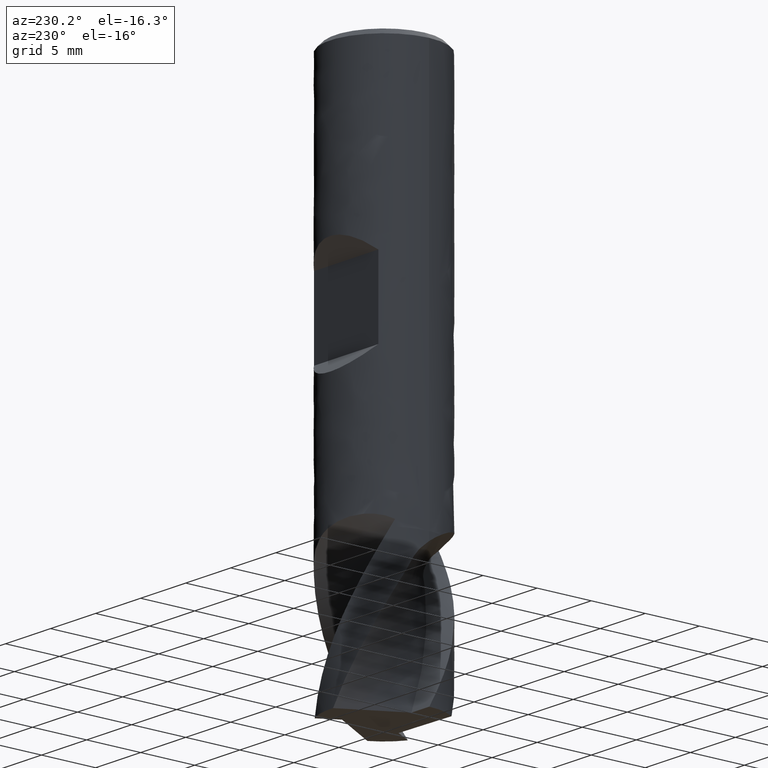
[diagram: clean part render]
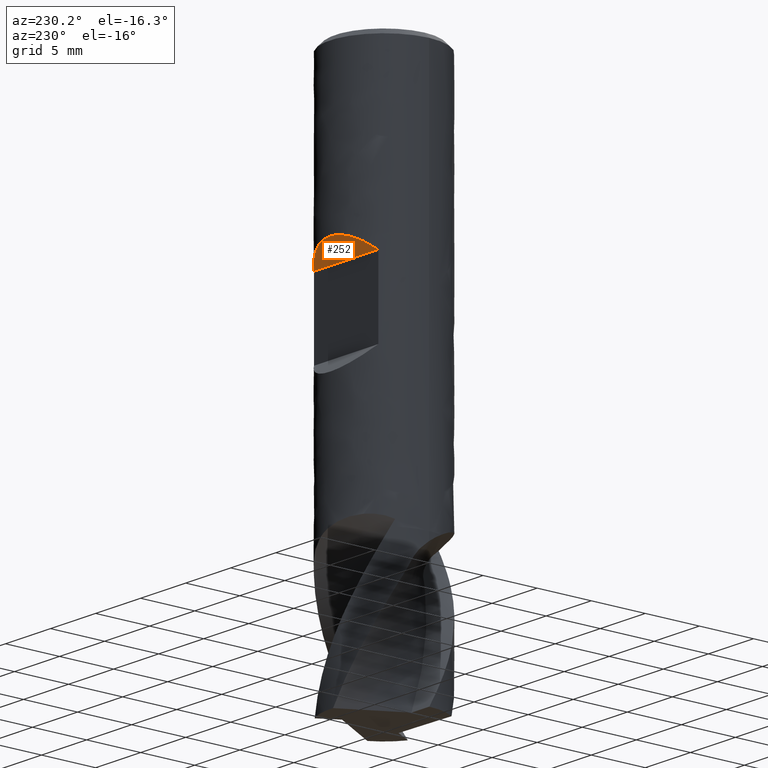
[diagram: same view with one face highlighted and labeled with its STEP entity id]
A machine part, auxiliary view. The second image highlights one B-rep face of the part: STEP entity #252.
In plain terms, the highlighted planar face has unit normal (0, 0.7133, -0.7009).
Its self-contained STEP definition (entity closure, byte-faithful):
#129 = VERTEX_POINT('', #130);
#130 = CARTESIAN_POINT('', (3.57071421427142, 3.5, -16.5));
#147 = VERTEX_POINT('', #148);
#148 = CARTESIAN_POINT('', (-3.57071421427142, 3.5, -16.5));
#154 = EDGE_CURVE('', #129, #147, #155, .T.);
#155 = LINE('', #156, #157);
#156 = CARTESIAN_POINT('', (3.57071421427142, 3.5, -16.5));
#157 = VECTOR('', #158, 7.14142842854284);
#158 = DIRECTION('', (-7.14142842854284, 4.44089209850063E-16, 0.));
#252 = ADVANCED_FACE('', (#253), #341, .T.);
#253 = FACE_OUTER_BOUND('', #254, .T.);
#254 = EDGE_LOOP('', (#255, #340));
#255 = ORIENTED_EDGE('', *, *, #256, .T.);
#256 = EDGE_CURVE('', #147, #129, #257, .T.);
#257 = B_SPLINE_CURVE_WITH_KNOTS('', 3, (#258, #259, #260, #261, #262, #263, #264, #265, #266, #267, #268, #269, #270, #271, #272, #273, #274, #275, #276, #277, #278, #279, #280, #281, #282, #283, #284, #285, #286, #287, #288, #289, #290, #291, #292, #293, #294, #295, #296, #297, #298, #299, #300, #301, #302, #303, #304, #305, #306, #307, #308, #309, #310, #311, #312, #313, #314, #315, #316, #317, #318, #319, #320, #321, #322, #323, #324, #325, #326, #327, #328, #329, #330, #331, #332, #333, #334, #335, #336, #337, #338, #339), .UNSPECIFIED., .F., .U., (4, 3, 3, 3, 3, 3, 3, 3, 3, 3, 3, 3, 3, 3, 3, 3, 3, 3, 3, 3, 3, 3, 3, 3, 3, 3, 3, 4), (0., 0.0341138844018456, 0.477744785271092, 0.921646138215224, 1.36587692968725, 1.66193288302491, 1.95811394690937, 2.25443514488297, 2.55091138328178, 2.84755630975292, 3.14438084834244, 3.44139155508659, 3.73858907509581, 4.03596708411747, 4.33180862682757, 4.62765016953766, 4.92502817855932, 5.22222569856855, 5.51923640531269, 5.81606094390221, 6.11270587037335, 6.40918210877216, 6.70550330674576, 7.00168437063023, 7.29774032396788, 7.74197111543991, 8.18587246838404, 8.66361725365513), .UNSPECIFIED.);
#258 = CARTESIAN_POINT('', (-3.57071421427142, 3.5, -16.5));
#259 = CARTESIAN_POINT('', (-3.56427504914016, 3.50656926241778, -16.4933150699973));
#260 = CARTESIAN_POINT('', (-3.55781171392695, 3.51312691832153, -16.4866419508691));
#261 = CARTESIAN_POINT('', (-3.55132420209363, 3.51967277053197, -16.4799808432664));
#262 = CARTESIAN_POINT('', (-3.46695794567111, 3.60479770907222, -16.3933570764815));
#263 = CARTESIAN_POINT('', (-3.37844247985145, 3.68798545467209, -16.3087046115544));
#264 = CARTESIAN_POINT('', (-3.28578814351442, 3.76876588234669, -16.2265018511453));
#265 = CARTESIAN_POINT('', (-3.19307732202845, 3.84959555644266, -16.1442489772137));
#266 = CARTESIAN_POINT('', (-3.09609712074417, 3.92812245563972, -16.0643394240436));
#267 = CARTESIAN_POINT('', (-2.9949239430808, 4.00380201498053, -15.9873273449615));
#268 = CARTESIAN_POINT('', (-2.89367568039574, 4.07953773941852, -15.9102581118613));
#269 = CARTESIAN_POINT('', (-2.78806685747399, 4.15253987393854, -15.835970600071));
#270 = CARTESIAN_POINT('', (-2.67827641976912, 4.22218372638007, -15.7651005009515));
#271 = CARTESIAN_POINT('', (-2.60510699224168, 4.268597611965, -15.7178693878437));
#272 = CARTESIAN_POINT('', (-2.53000964820203, 4.3135654473404, -15.6721097861197));
#273 = CARTESIAN_POINT('', (-2.45307301645999, 4.35688337873714, -15.6280291388821));
#274 = CARTESIAN_POINT('', (-2.3761038719988, 4.40021961589676, -15.5839298635649));
#275 = CARTESIAN_POINT('', (-2.29722271975626, 4.44194401506199, -15.5414708065071));
#276 = CARTESIAN_POINT('', (-2.2165553058254, 4.48183919571166, -15.500873175734));
#277 = CARTESIAN_POINT('', (-2.13584972519196, 4.52175325222978, -15.4602563367377));
#278 = CARTESIAN_POINT('', (-2.05327275837509, 4.55987689392243, -15.4214614371042));
#279 = CARTESIAN_POINT('', (-1.96899537705871, 4.59598272463262, -15.3847198768441));
#280 = CARTESIAN_POINT('', (-1.88467390034474, 4.63210744654394, -15.3479590927581));
#281 = CARTESIAN_POINT('', (-1.79855309962361, 4.6662530102042, -15.3132123147402));
#282 = CARTESIAN_POINT('', (-1.71085713788038, 4.69818772014953, -15.2807153178074));
#283 = CARTESIAN_POINT('', (-1.62311127917806, 4.7301406002008, -15.2481998308405));
#284 = CARTESIAN_POINT('', (-1.5336765186139, 4.75991992907671, -15.2178961656186));
#285 = CARTESIAN_POINT('', (-1.44283688724849, 4.78729795571522, -15.1900360833063));
#286 = CARTESIAN_POINT('', (-1.35194225444139, 4.81469255915962, -15.1621591323137));
#287 = CARTESIAN_POINT('', (-1.25951372693075, 4.83972032116018, -15.1366906966724));
#288 = CARTESIAN_POINT('', (-1.16589904343752, 4.86216818101878, -15.1138475885239));
#289 = CARTESIAN_POINT('', (-1.07222564487661, 4.88463012016027, -15.090990153193));
#290 = CARTESIAN_POINT('', (-0.977222202676108, 4.90454207535022, -15.0707276003832));
#291 = CARTESIAN_POINT('', (-0.88129942868599, 4.92171832970943, -15.0532489169637));
#292 = CARTESIAN_POINT('', (-0.785316321360414, 4.9389053875585, -15.0357592398331));
#293 = CARTESIAN_POINT('', (-0.688256648043104, 4.9533803669116, -15.0210293938302));
#294 = CARTESIAN_POINT('', (-0.59058730796214, 4.96499815021859, -15.0092070516471));
#295 = CARTESIAN_POINT('', (-0.492858652975936, 4.97662298904286, -14.9973775297174));
#296 = CARTESIAN_POINT('', (-0.394352460497301, 4.98540636972408, -14.9884394966009));
#297 = CARTESIAN_POINT('', (-0.295578376007082, 4.9912556960786, -14.9824871788586));
#298 = CARTESIAN_POINT('', (-0.197314628692681, 4.9970748006527, -14.9765656150235));
#299 = CARTESIAN_POINT('', (-0.0986138475700329, 5., -14.9735889105418));
#300 = CARTESIAN_POINT('', (4.72269969473152E-16, 5., -14.9735889105418));
#301 = CARTESIAN_POINT('', (0.0986138475700333, 5., -14.9735889105418));
#302 = CARTESIAN_POINT('', (0.197314628692681, 4.9970748006527, -14.9765656150235));
#303 = CARTESIAN_POINT('', (0.295578376007081, 4.9912556960786, -14.9824871788586));
#304 = CARTESIAN_POINT('', (0.394352460497299, 4.98540636972408, -14.9884394966009));
#305 = CARTESIAN_POINT('', (0.492858652975936, 4.97662298904286, -14.9973775297174));
#306 = CARTESIAN_POINT('', (0.590587307962139, 4.96499815021859, -15.0092070516471));
#307 = CARTESIAN_POINT('', (0.688256648043103, 4.9533803669116, -15.0210293938302));
#308 = CARTESIAN_POINT('', (0.785316321360413, 4.9389053875585, -15.035759239833));
#309 = CARTESIAN_POINT('', (0.881299428685989, 4.92171832970943, -15.0532489169637));
#310 = CARTESIAN_POINT('', (0.977222202676107, 4.90454207535022, -15.0707276003832));
#311 = CARTESIAN_POINT('', (1.07222564487661, 4.88463012016027, -15.090990153193));
#312 = CARTESIAN_POINT('', (1.16589904343752, 4.86216818101878, -15.1138475885239));
#313 = CARTESIAN_POINT('', (1.25951372693075, 4.83972032116018, -15.1366906966724));
#314 = CARTESIAN_POINT('', (1.35194225444139, 4.81469255915962, -15.1621591323137));
#315 = CARTESIAN_POINT('', (1.44283688724849, 4.78729795571522, -15.1900360833063));
#316 = CARTESIAN_POINT('', (1.5336765186139, 4.75991992907671, -15.2178961656186));
#317 = CARTESIAN_POINT('', (1.62311127917806, 4.7301406002008, -15.2481998308405));
#318 = CARTESIAN_POINT('', (1.71085713788038, 4.69818772014953, -15.2807153178074));
#319 = CARTESIAN_POINT('', (1.79855309962361, 4.6662530102042, -15.3132123147402));
#320 = CARTESIAN_POINT('', (1.88467390034474, 4.63210744654394, -15.3479590927581));
#321 = CARTESIAN_POINT('', (1.9689953770587, 4.59598272463262, -15.3847198768441));
#322 = CARTESIAN_POINT('', (2.05327275837509, 4.55987689392243, -15.4214614371042));
#323 = CARTESIAN_POINT('', (2.13584972519196, 4.52175325222978, -15.4602563367377));
#324 = CARTESIAN_POINT('', (2.2165553058254, 4.48183919571166, -15.500873175734));
#325 = CARTESIAN_POINT('', (2.29722271975626, 4.441944015062, -15.5414708065071));
#326 = CARTESIAN_POINT('', (2.3761038719988, 4.40021961589676, -15.5839298635649));
#327 = CARTESIAN_POINT('', (2.45307301645999, 4.35688337873714, -15.6280291388821));
#328 = CARTESIAN_POINT('', (2.53000964820203, 4.3135654473404, -15.6721097861197));
#329 = CARTESIAN_POINT('', (2.60510699224168, 4.268597611965, -15.7178693878437));
#330 = CARTESIAN_POINT('', (2.67827641976913, 4.22218372638007, -15.7651005009515));
#331 = CARTESIAN_POINT('', (2.78806685747399, 4.15253987393854, -15.835970600071));
#332 = CARTESIAN_POINT('', (2.89367568039574, 4.07953773941852, -15.9102581118613));
#333 = CARTESIAN_POINT('', (2.99492394308079, 4.00380201498053, -15.9873273449615));
#334 = CARTESIAN_POINT('', (3.09609712074417, 3.92812245563971, -16.0643394240436));
#335 = CARTESIAN_POINT('', (3.19307732202845, 3.84959555644266, -16.1442489772137));
#336 = CARTESIAN_POINT('', (3.28578814351442, 3.76876588234669, -16.2265018511453));
#337 = CARTESIAN_POINT('', (3.38556732014761, 3.68177368230406, -16.3150257570396));
#338 = CARTESIAN_POINT('', (3.48053751299862, 3.59199863686598, -16.4063815069818));
#339 = CARTESIAN_POINT('', (3.57071421427142, 3.5, -16.5));
#340 = ORIENTED_EDGE('', *, *, #154, .T.);
#341 = PLANE('', #342);
#342 = AXIS2_PLACEMENT_3D('', #343, #344, #345);
#343 = CARTESIAN_POINT('', (5., 3.5, -16.5));
#344 = DIRECTION('', (0., 0.713250449154182, -0.700909264299851));
#345 = DIRECTION('', (-1., 0., 0.));